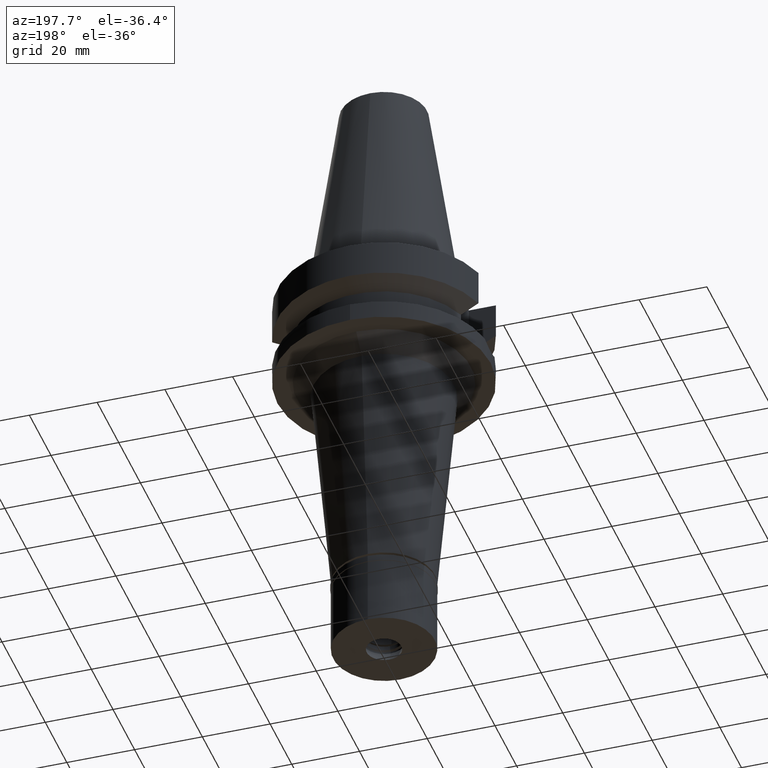
[diagram: clean part render]
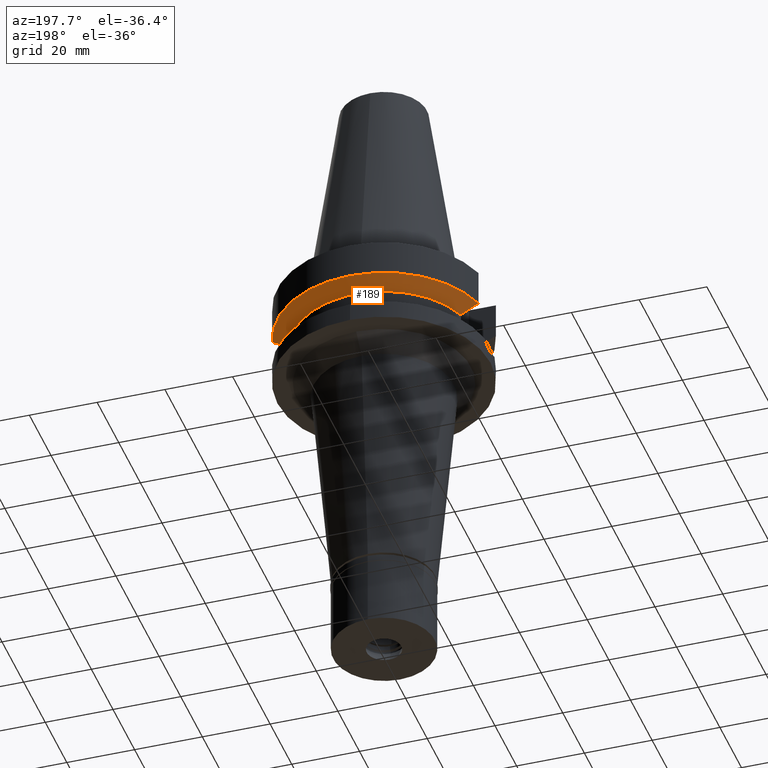
[diagram: same view with one face highlighted and labeled with its STEP entity id]
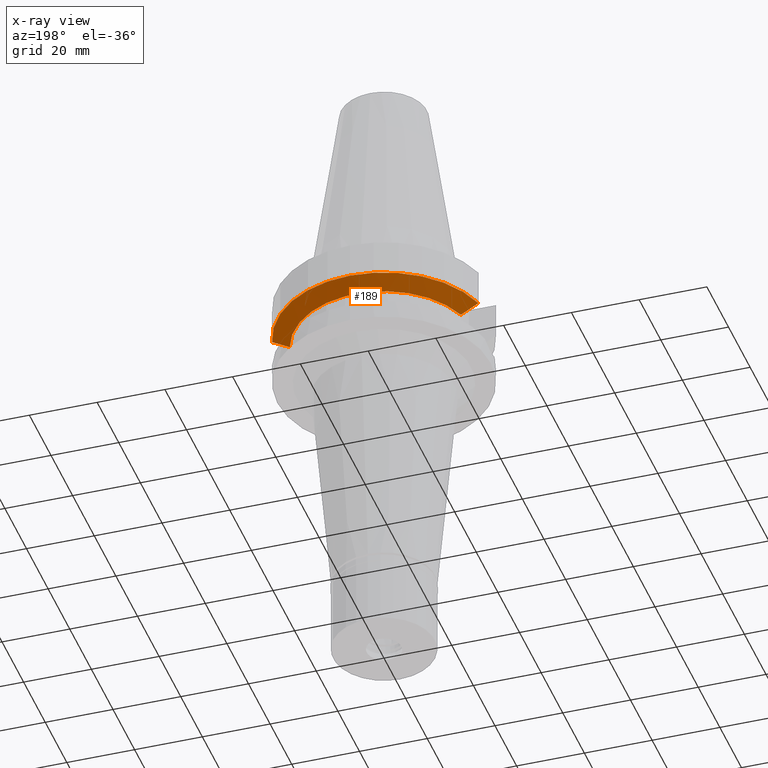
[diagram: x-ray of the same camera — body ghosted, the highlighted face saturated]
A machine part, auxiliary view. The second image highlights one B-rep face of the part: STEP entity #189.
The next image is the same camera in x-ray: the body ghosted, the highlighted face saturated — about 0% of this face is hidden behind the body in this view.
In plain terms, the highlighted conical surface has half-angle 60 deg.
Its self-contained STEP definition (entity closure, byte-faithful):
#132 = CARTESIAN_POINT ( 'NONE',  ( 25.24772413117000269, 8.049995415907000407, -14.45229202706000038 ) ) ;
#146 = DIRECTION ( 'NONE',  ( 0.0000000000000000000, 0.0000000000000000000, 1.000000000000000000 ) ) ;
#189 = ADVANCED_FACE ( 'NONE', ( #530 ), #2226, .T. ) ;
#212 = CARTESIAN_POINT ( 'NONE',  ( 30.45402291370999848, 8.049999277728000280, -11.56551215802000065 ) ) ;
#224 = AXIS2_PLACEMENT_3D ( 'NONE', #371, #146, #1164 ) ;
#371 = CARTESIAN_POINT ( 'NONE',  ( 0.0000000000000000000, 1.065333950388000029E-14, -11.56550565266999975 ) ) ;
#494 = CARTESIAN_POINT ( 'NONE',  ( -25.24772216385000334, 8.050001586148999522, -14.45224487903000110 ) ) ;
#530 = FACE_OUTER_BOUND ( 'NONE', #1556, .T. ) ;
#664 = DIRECTION ( 'NONE',  ( 0.0000000000000000000, 0.0000000000000000000, -1.000000000000000000 ) ) ;
#676 = VERTEX_POINT ( 'NONE', #2986 ) ;
#899 = ORIENTED_EDGE ( 'NONE', *, *, #3077, .F. ) ;
#923 = EDGE_CURVE ( 'NONE', #2990, #2680, #1122, .T. ) ;
#928 = CARTESIAN_POINT ( 'NONE',  ( -25.24772216385000334, 8.050001586148999522, -14.45224487903000110 ) ) ;
#948 = CIRCLE ( 'NONE', #224, 31.50000000000000000 ) ;
#982 = CARTESIAN_POINT ( 'NONE',  ( 30.45402291370999848, 8.049999277728000280, -11.56551215802000065 ) ) ;
#1044 = CARTESIAN_POINT ( 'NONE',  ( -26.83758147672169159, 8.050003175723730919, -13.57772735593181324 ) ) ;
#1122 = CIRCLE ( 'NONE', #1625, 26.50000000000000711 ) ;
#1164 = DIRECTION ( 'NONE',  ( 0.0000000000000000000, 1.000000000000000000, 0.0000000000000000000 ) ) ;
#1502 = CARTESIAN_POINT ( 'NONE',  ( -28.57295870773846502, 8.050008282486178501, -12.61547480681156586 ) ) ;
#1504 = CARTESIAN_POINT ( 'NONE',  ( 0.0000000000000000000, 1.065333950388000029E-14, -13.00888132564000088 ) ) ;
#1556 = EDGE_LOOP ( 'NONE', ( #899, #2319, #2702, #2607 ) ) ;
#1590 = EDGE_CURVE ( 'NONE', #2990, #676, #2071, .T. ) ;
#1625 = AXIS2_PLACEMENT_3D ( 'NONE', #2829, #664, #2314 ) ;
#1815 = EDGE_CURVE ( 'NONE', #2491, #2680, #2190, .T. ) ;
#2071 = B_SPLINE_CURVE_WITH_KNOTS ( 'NONE', 3,
 ( #494, #1044, #1502, #2470 ),
 .UNSPECIFIED., .F., .F.,
 ( 4, 4 ),
 ( 0.0000000000000000000, 1.000000000000000000 ),
 .UNSPECIFIED. ) ;
#2186 = CARTESIAN_POINT ( 'NONE',  ( 25.24772413117000269, 8.049995415907000407, -14.45229202706000038 ) ) ;
#2190 = B_SPLINE_CURVE_WITH_KNOTS ( 'NONE', 3,
 ( #212, #2377, #2662, #2186 ),
 .UNSPECIFIED., .F., .F.,
 ( 4, 4 ),
 ( 0.0000000000000000000, 1.000000000000000000 ),
 .UNSPECIFIED. ) ;
#2226 = CONICAL_SURFACE ( 'NONE', #2432, 29.00000000000000000, 1.047197551196400456 ) ;
#2314 = DIRECTION ( 'NONE',  ( -0.9527442516822307583, 0.3037735849057093818, 0.0000000000000000000 ) ) ;
#2319 = ORIENTED_EDGE ( 'NONE', *, *, #1815, .T. ) ;
#2377 = CARTESIAN_POINT ( 'NONE',  ( 28.57292329446579870, 8.049998556396268157, -12.61549605313999933 ) ) ;
#2432 = AXIS2_PLACEMENT_3D ( 'NONE', #1504, #2721, #2985 ) ;
#2470 = CARTESIAN_POINT ( 'NONE',  ( -30.45402162745000041, 8.050004143761000819, -11.56546832742999875 ) ) ;
#2491 = VERTEX_POINT ( 'NONE', #982 ) ;
#2607 = ORIENTED_EDGE ( 'NONE', *, *, #1590, .T. ) ;
#2662 = CARTESIAN_POINT ( 'NONE',  ( 26.83754616426121942, 8.049990821659628537, -13.57774887871505420 ) ) ;
#2680 = VERTEX_POINT ( 'NONE', #132 ) ;
#2702 = ORIENTED_EDGE ( 'NONE', *, *, #923, .F. ) ;
#2721 = DIRECTION ( 'NONE',  ( 0.0000000000000000000, 0.0000000000000000000, 1.000000000000000000 ) ) ;
#2829 = CARTESIAN_POINT ( 'NONE',  ( 0.0000000000000000000, 1.065333950388000029E-14, -14.45225699861000024 ) ) ;
#2985 = DIRECTION ( 'NONE',  ( 0.0000000000000000000, 1.000000000000000000, 0.0000000000000000000 ) ) ;
#2986 = CARTESIAN_POINT ( 'NONE',  ( -30.45402162745000041, 8.050004143761000819, -11.56546832742999875 ) ) ;
#2990 = VERTEX_POINT ( 'NONE', #928 ) ;
#3077 = EDGE_CURVE ( 'NONE', #2491, #676, #948, .T. ) ;